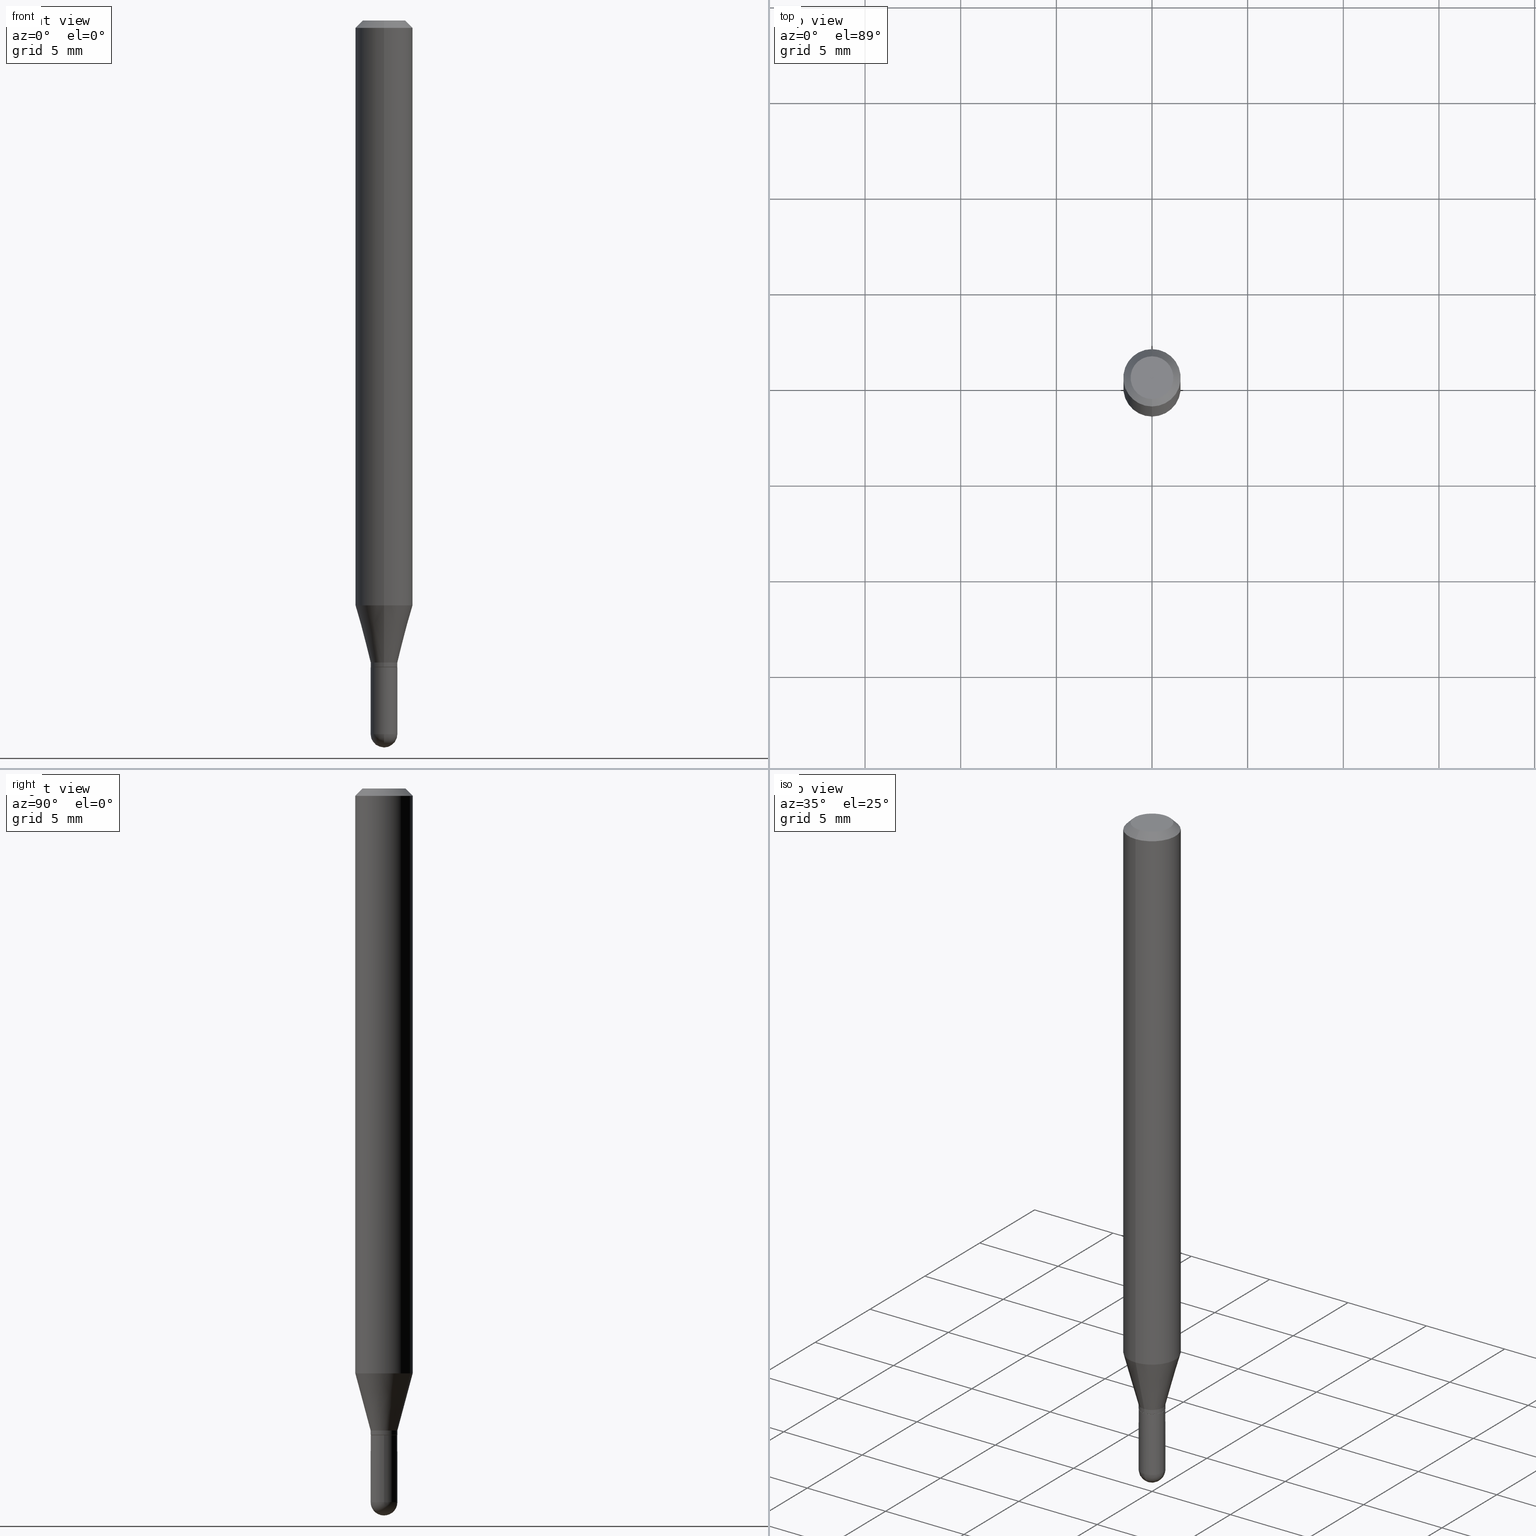
[diagram: canonical four-view strip — front | top / right | iso, engineering-drawing reading convention]
A machine part, canonical four-view strip (front | top / right | iso — engineering-drawing reading convention). The complete STEP part file that produces these views, byte-faithful:
ISO-10303-21;
HEADER;
FILE_DESCRIPTION (( 'STEP AP203' ),
    '1' );
FILE_NAME ('02943.STEP',
    '2024-03-07T21:55:42',
    ( '' ),
    ( '' ),
    'SwSTEP 2.0',
    'SolidWorks 2023',
    '' );
FILE_SCHEMA (( 'CONFIG_CONTROL_DESIGN' ));
ENDSEC;

DATA;
#1 = LINE ( 'NONE', #476, #369 ) ;
#2 = DIRECTION ( 'NONE',  ( -6.982962677686265922E-15, -1.000000000000000000, 3.491568029886026969E-15 ) ) ;
#3 = DIRECTION ( 'NONE',  ( -2.445468806185136597E-29, 3.491481338843145583E-15, 1.000000000000000000 ) ) ;
#4 = CARTESIAN_POINT ( 'NONE',  ( 3.075995059520799729E-16, 0.04404999999999999888, -1.996340688043498133E-16 ) ) ;
#5 = APPROVAL_ROLE ( '' ) ;
#6 = FACE_OUTER_BOUND ( 'NONE', #452, .T. ) ;
#7 = DIRECTION ( 'NONE',  ( -2.445408270153443463E-29, 3.491568029886026969E-15, 1.000000000000000000 ) ) ;
#8 = CONICAL_SURFACE ( 'NONE', #359, 0.02705000000000000113, 0.7853981633974739252 ) ;
#9 = AXIS2_PLACEMENT_3D ( 'NONE', #163, #85, #237 ) ;
#10 = PERSON_AND_ORGANIZATION ( #96, #138 ) ;
#11 = DIRECTION ( 'NONE',  ( -2.445468806185136597E-29, 3.491481338843145583E-15, 1.000000000000000000 ) ) ;
#12 = ORIENTED_EDGE ( 'NONE', *, *, #68, .F. ) ;
#13 = CYLINDRICAL_SURFACE ( 'NONE', #22, 0.02754999999999965810 ) ;
#14 = CARTESIAN_POINT ( 'NONE',  ( 1.922018100231396241E-16, 0.02704999999999535901, -1.330699999999999550 ) ) ;
#15 = VERTEX_POINT ( 'NONE', #325 ) ;
#16 =( NAMED_UNIT ( * ) PLANE_ANGLE_UNIT ( ) SI_UNIT ( $, .RADIAN. ) );
#17 = DIRECTION ( 'NONE',  ( -6.982962677686265922E-15, -1.000000000000000000, 3.491568029886026969E-15 ) ) ;
#18 = DIRECTION ( 'NONE',  ( 1.839019923739603076E-15, 0.2588190451025253469, 0.9659258262890670910 ) ) ;
#19 = ORIENTED_EDGE ( 'NONE', *, *, #303, .T. ) ;
#20 = SECURITY_CLASSIFICATION_LEVEL ( 'unclassified' ) ;
#21 = CIRCLE ( 'NONE', #330, 0.05904999999999999832 ) ;
#22 = AXIS2_PLACEMENT_3D ( 'NONE', #46, #450, #17 ) ;
#23 = AXIS2_PLACEMENT_3D ( 'NONE', #235, #87, #134 ) ;
#24 = ORIENTED_EDGE ( 'NONE', *, *, #511, .F. ) ;
#25 = APPROVAL_ROLE ( '' ) ;
#26 = ORIENTED_EDGE ( 'NONE', *, *, #152, .T. ) ;
#27 = AXIS2_PLACEMENT_3D ( 'NONE', #149, #119, #224 ) ;
#28 = EDGE_CURVE ( 'NONE', #257, #442, #21, .T. ) ;
#29 = EDGE_LOOP ( 'NONE', ( #51, #115, #389, #310 ) ) ;
#30 = APPROVAL ( #499, 'UNSPECIFIED' ) ;
#31 = DIRECTION ( 'NONE',  ( -6.982962677686266711E-15, -1.000000000000000000, 0.000000000000000000 ) ) ;
#32 = ORIENTED_EDGE ( 'NONE', *, *, #247, .F. ) ;
#33 = CYLINDRICAL_SURFACE ( 'NONE', #444, 0.05904999999999999832 ) ;
#34 = CIRCLE ( 'NONE', #88, 0.02755000000000000851 ) ;
#35 = EDGE_LOOP ( 'NONE', ( #327, #180 ) ) ;
#36 = DIRECTION ( 'NONE',  ( 1.000000000000000000, -6.982962677686265922E-15, 4.876176775795935793E-29 ) ) ;
#37 = EDGE_LOOP ( 'NONE', ( #206, #343, #509, #488 ) ) ;
#38 = AXIS2_PLACEMENT_3D ( 'NONE', #486, #446, #492 ) ;
#39 = FACE_OUTER_BOUND ( 'NONE', #52, .T. ) ;
#40 = PRODUCT_DEFINITION ( 'UNKNOWN', '', #360, #75 ) ;
#41 = DIRECTION ( 'NONE',  ( -2.445408270153443463E-29, 3.491568029886026969E-15, 1.000000000000000000 ) ) ;
#42 = DIRECTION ( 'NONE',  ( 2.438088387897960049E-29, -3.491481338843145188E-15, -1.000000000000000000 ) ) ;
#43 = DIRECTION ( 'NONE',  ( -6.982962677686265922E-15, -1.000000000000000000, 0.000000000000000000 ) ) ;
#44 = DIRECTION ( 'NONE',  ( 1.000000000000000000, -6.982962677686254878E-15, 0.000000000000000000 ) ) ;
#45 = PERSON_AND_ORGANIZATION ( #96, #138 ) ;
#46 = CARTESIAN_POINT ( 'NONE',  ( 0.000000000000000000, 0.000000000000000000, 0.000000000000000000 ) ) ;
#47 = AXIS2_PLACEMENT_3D ( 'NONE', #477, #219, #321 ) ;
#48 = CC_DESIGN_APPROVAL ( #460, ( #360 ) ) ;
#49 = APPROVAL_DATE_TIME ( #131, #460 ) ;
#50 = CC_DESIGN_PERSON_AND_ORGANIZATION_ASSIGNMENT ( #295, #177, ( #106 ) ) ;
#51 = ORIENTED_EDGE ( 'NONE', *, *, #508, .F. ) ;
#52 = EDGE_LOOP ( 'NONE', ( #484, #127, #281, #383 ) ) ;
#53 = EDGE_CURVE ( 'NONE', #463, #494, #491, .T. ) ;
#54 = ORIENTED_EDGE ( 'NONE', *, *, #338, .T. ) ;
#55 = EDGE_LOOP ( 'NONE', ( #19, #475, #129, #386 ) ) ;
#56 = VECTOR ( 'NONE', #198, 39.37007874015748143 ) ;
#57 = VECTOR ( 'NONE', #207, 39.37007874015748143 ) ;
#58 = ORIENTED_EDGE ( 'NONE', *, *, #432, .T. ) ;
#59 = CLOSED_SHELL ( 'NONE', ( #300, #172, #86, #148, #187, #505, #500, #352, #150, #328, #114, #136 ) ) ;
#60 = DIRECTION ( 'NONE',  ( -4.851104656540964275E-15, -0.7071067811865500152, -0.7071067811865450192 ) ) ;
#61 = DIRECTION ( 'NONE',  ( 1.000000000000000000, -6.982962677686256455E-15, 0.000000000000000000 ) ) ;
#62 = DIRECTION ( 'NONE',  ( -6.982962677686266711E-15, -1.000000000000000000, 0.000000000000000000 ) ) ;
#63 = AXIS2_PLACEMENT_3D ( 'NONE', #95, #413, #61 ) ;
#64 = CC_DESIGN_DATE_AND_TIME_ASSIGNMENT ( #363, #402, ( #40 ) ) ;
#65 = CC_DESIGN_APPROVAL ( #30, ( #276 ) ) ;
#66 = ADVANCED_FACE ( 'NONE', ( #6 ), #195, .T. ) ;
#67 = CYLINDRICAL_SURFACE ( 'NONE', #322, 0.05904999999999999832 ) ;
#68 = EDGE_CURVE ( 'NONE', #125, #299, #323, .T. ) ;
#69 = CARTESIAN_POINT ( 'NONE',  ( 3.254104785093186315E-29, -4.646229577369334109E-15, -1.330699999999999550 ) ) ;
#70 = VERTEX_POINT ( 'NONE', #435 ) ;
#71 = CARTESIAN_POINT ( 'NONE',  ( 3.591293215323181808E-29, -5.127414920158100475E-15, -1.468549999999999800 ) ) ;
#72 = ADVANCED_FACE ( 'NONE', ( #83 ), #234, .F. ) ;
#73 = AXIS2_PLACEMENT_3D ( 'NONE', #361, #11, #447 ) ;
#74 = EDGE_CURVE ( 'NONE', #299, #448, #466, .T. ) ;
#75 = DESIGN_CONTEXT ( 'detailed design', #493, 'design' ) ;
#76 = CARTESIAN_POINT ( 'NONE',  ( 3.588937232196492421E-29, -5.130788822089751023E-15, -1.468549999999999800 ) ) ;
#77 = DIRECTION ( 'NONE',  ( -2.445408270153443463E-29, 3.491568029886026969E-15, 1.000000000000000000 ) ) ;
#78 = CARTESIAN_POINT ( 'NONE',  ( 0.000000000000000000, 0.000000000000000000, 0.000000000000000000 ) ) ;
#79 = CC_DESIGN_PERSON_AND_ORGANIZATION_ASSIGNMENT ( #169, #232, ( #276 ) ) ;
#80 = AXIS2_PLACEMENT_3D ( 'NONE', #196, #7, #273 ) ;
#81 = CIRCLE ( 'NONE', #73, 0.02755000000000000851 ) ;
#82 = PERSON_AND_ORGANIZATION ( #96, #138 ) ;
#83 = FACE_OUTER_BOUND ( 'NONE', #35, .T. ) ;
#84 = CARTESIAN_POINT ( 'NONE',  ( 3.668112405230187738E-31, -5.237352044829072796E-17, -0.01500000000000009139 ) ) ;
#85 = DIRECTION ( 'NONE',  ( -2.445408270153443463E-29, 3.491568029886026969E-15, 1.000000000000000000 ) ) ;
#86 = ADVANCED_FACE ( 'NONE', ( #440 ), #120, .T. ) ;
#87 = DIRECTION ( 'NONE',  ( -2.445408270153443463E-29, 3.491568029886026969E-15, 1.000000000000000000 ) ) ;
#88 = AXIS2_PLACEMENT_3D ( 'NONE', #71, #349, #112 ) ;
#89 = ORIENTED_EDGE ( 'NONE', *, *, #395, .T. ) ;
#90 = CARTESIAN_POINT ( 'NONE',  ( -1.923806217702209492E-16, -0.02755000000000515370, -1.468549999999999800 ) ) ;
#91 = ORIENTED_EDGE ( 'NONE', *, *, #124, .T. ) ;
#92 = PERSON_AND_ORGANIZATION_ROLE ( 'creator' ) ;
#93 = DIRECTION ( 'NONE',  ( -6.982962677686265922E-15, -1.000000000000000000, 3.491568029886026969E-15 ) ) ;
#94 = ORIENTED_EDGE ( 'NONE', *, *, #239, .F. ) ;
#95 = CARTESIAN_POINT ( 'NONE',  ( 3.254185340390560677E-29, -4.646114217598572614E-15, -1.330699999999999772 ) ) ;
#96 = PERSON ( 'UNSPECIFIED', 'UNSPECIFIED', 'UNSPECIFIED', ('UNSPECIFIED'), ('UNSPECIFIED'), ('UNSPECIFIED') ) ;
#97 = ORIENTED_EDGE ( 'NONE', *, *, #283, .T. ) ;
#98 = APPROVAL_STATUS ( 'not_yet_approved' ) ;
#99 = EDGE_CURVE ( 'NONE', #378, #289, #433, .T. ) ;
#100 = CARTESIAN_POINT ( 'NONE',  ( -4.123439461173739834E-16, -0.05904999999999999832, 2.061770921647698955E-16 ) ) ;
#101 = CIRCLE ( 'NONE', #458, 0.02754999999999965810 ) ;
#102 = EDGE_CURVE ( 'NONE', #463, #441, #304, .T. ) ;
#103 = DIRECTION ( 'NONE',  ( -2.445408270153443463E-29, 3.491568029886026969E-15, 1.000000000000000000 ) ) ;
#104 = DIRECTION ( 'NONE',  ( -2.445468806185136597E-29, 3.491481338843145583E-15, 1.000000000000000000 ) ) ;
#105 = ORIENTED_EDGE ( 'NONE', *, *, #416, .F. ) ;
#106 = PRODUCT ( '02943', '02943', '', ( #377 ) ) ;
#107 = FACE_OUTER_BOUND ( 'NONE', #55, .T. ) ;
#108 = ORIENTED_EDGE ( 'NONE', *, *, #341, .T. ) ;
#109 = LINE ( 'NONE', #264, #286 ) ;
#110 = VERTEX_POINT ( 'NONE', #501 ) ;
#111 = ORIENTED_EDGE ( 'NONE', *, *, #247, .T. ) ;
#112 = DIRECTION ( 'NONE',  ( 1.000000000000000000, -6.982962677686254878E-15, 0.000000000000000000 ) ) ;
#113 = VECTOR ( 'NONE', #320, 39.37007874015748143 ) ;
#114 = ADVANCED_FACE ( 'NONE', ( #512 ), #368, .T. ) ;
#115 = ORIENTED_EDGE ( 'NONE', *, *, #28, .T. ) ;
#116 = DIRECTION ( 'NONE',  ( -4.937700262164674260E-15, -0.7071067811865632269, 0.7071067811865319186 ) ) ;
#117 = DIRECTION ( 'NONE',  ( -2.445468806185136597E-29, 3.491481338843145583E-15, 1.000000000000000000 ) ) ;
#118 = CC_DESIGN_DATE_AND_TIME_ASSIGNMENT ( #496, #336, ( #276 ) ) ;
#119 = DIRECTION ( 'NONE',  ( -2.445408270153443463E-29, 3.491568029886026969E-15, 1.000000000000000000 ) ) ;
#120 = CONICAL_SURFACE ( 'NONE', #184, 0.05904999999999999832, 0.7853981633974483900 ) ;
#121 = AXIS2_PLACEMENT_3D ( 'NONE', #215, #103, #259 ) ;
#122 = DIRECTION ( 'NONE',  ( -2.445408270153443743E-29, 3.491568029886026969E-15, 1.000000000000000000 ) ) ;
#123 = DIRECTION ( 'NONE',  ( 1.000000000000000000, -6.982962677686256455E-15, 0.000000000000000000 ) ) ;
#124 = EDGE_CURVE ( 'NONE', #125, #289, #208, .T. ) ;
#125 = VERTEX_POINT ( 'NONE', #439 ) ;
#126 = PLANE ( 'NONE',  #178 ) ;
#127 = ORIENTED_EDGE ( 'NONE', *, *, #239, .T. ) ;
#128 = ORIENTED_EDGE ( 'NONE', *, *, #258, .F. ) ;
#129 = ORIENTED_EDGE ( 'NONE', *, *, #400, .F. ) ;
#130 = CC_DESIGN_SECURITY_CLASSIFICATION ( #276, ( #360 ) ) ;
#131 = DATE_AND_TIME ( #365, #504 ) ;
#132 = CARTESIAN_POINT ( 'NONE',  ( 2.943147646551666827E-29, -4.202243181785466400E-15, -1.203540399561579655 ) ) ;
#133 = FACE_OUTER_BOUND ( 'NONE', #309, .T. ) ;
#134 = DIRECTION ( 'NONE',  ( -6.982962677686265133E-15, -1.000000000000000000, 3.491568029886026969E-15 ) ) ;
#135 = ORIENTED_EDGE ( 'NONE', *, *, #316, .T. ) ;
#136 = ADVANCED_FACE ( 'NONE', ( #350 ), #315, .T. ) ;
#137 = CARTESIAN_POINT ( 'NONE',  ( 0.000000000000000000, 0.000000000000000000, 0.000000000000000000 ) ) ;
#138 = ORGANIZATION ( 'UNSPECIFIED', 'UNSPECIFIED', '' ) ;
#139 = ORIENTED_EDGE ( 'NONE', *, *, #429, .F. ) ;
#140 = PERSON_AND_ORGANIZATION ( #96, #138 ) ;
#141 = DIRECTION ( 'NONE',  ( 1.000000000000000000, -6.982962677686266711E-15, 4.883557194083112901E-29 ) ) ;
#142 = AXIS2_PLACEMENT_3D ( 'NONE', #381, #506, #183 ) ;
#143 = DIRECTION ( 'NONE',  ( -6.982962677686265922E-15, -1.000000000000000000, 0.000000000000000000 ) ) ;
#144 = EDGE_LOOP ( 'NONE', ( #379, #182, #372, #24 ) ) ;
#145 = CARTESIAN_POINT ( 'NONE',  ( 1.939781668625386436E-16, 0.02704999999999535901, -1.330699999999999550 ) ) ;
#146 = ORIENTED_EDGE ( 'NONE', *, *, #334, .F. ) ;
#147 = VERTEX_POINT ( 'NONE', #194 ) ;
#148 = ADVANCED_FACE ( 'NONE', ( #423 ), #67, .T. ) ;
#149 = CARTESIAN_POINT ( 'NONE',  ( 3.254104785093186315E-29, -4.646229577369334109E-15, -1.330699999999999550 ) ) ;
#150 = ADVANCED_FACE ( 'NONE', ( #464 ), #355, .F. ) ;
#151 = DIRECTION ( 'NONE',  ( -6.982962677686266711E-15, -1.000000000000000000, 0.000000000000000000 ) ) ;
#152 = EDGE_CURVE ( 'NONE', #70, #125, #403, .T. ) ;
#153 = CARTESIAN_POINT ( 'NONE',  ( -1.923806217702223543E-16, -0.02755000000000439042, -1.330199999999999827 ) ) ;
#154 = CARTESIAN_POINT ( 'NONE',  ( -1.888891404313809742E-16, -0.02705000000000464672, -1.330699999999999550 ) ) ;
#155 = DIRECTION ( 'NONE',  ( 1.000000000000000000, -6.982962677686265922E-15, 4.876176775795935793E-29 ) ) ;
#156 = CARTESIAN_POINT ( 'NONE',  ( -1.923806217702219352E-16, -0.02755000000000427246, -1.321099999999999941 ) ) ;
#157 = CARTESIAN_POINT ( 'NONE',  ( 3.591293215323181808E-29, -5.127414920158100475E-15, -1.468549999999999800 ) ) ;
#158 = CARTESIAN_POINT ( 'NONE',  ( 3.254185340390560677E-29, -4.646114217598572614E-15, -1.330699999999999772 ) ) ;
#159 = AXIS2_PLACEMENT_3D ( 'NONE', #318, #77, #227 ) ;
#160 = CARTESIAN_POINT ( 'NONE',  ( 0.000000000000000000, 0.000000000000000000, 0.000000000000000000 ) ) ;
#161 = DIRECTION ( 'NONE',  ( -6.982962677686265922E-15, -1.000000000000000000, 0.000000000000000000 ) ) ;
#162 = ORIENTED_EDGE ( 'NONE', *, *, #253, .F. ) ;
#163 = CARTESIAN_POINT ( 'NONE',  ( 2.241485532078428435E-45, -3.200405968515854961E-31, -9.166099417574067524E-17 ) ) ;
#164 = VERTEX_POINT ( 'NONE', #154 ) ;
#165 = CARTESIAN_POINT ( 'NONE',  ( 4.195754854663683357E-16, 0.05904999999999576560, -1.203540399561579877 ) ) ;
#166 = CIRCLE ( 'NONE', #426, 0.02754999999999965463 ) ;
#167 = CC_DESIGN_PERSON_AND_ORGANIZATION_ASSIGNMENT ( #10, #92, ( #360 ) ) ;
#168 = ORIENTED_EDGE ( 'NONE', *, *, #226, .T. ) ;
#169 = PERSON_AND_ORGANIZATION ( #96, #138 ) ;
#170 = DIRECTION ( 'NONE',  ( -6.982962677686265922E-15, -1.000000000000000000, 4.626330217890369336E-15 ) ) ;
#171 = SHAPE_DEFINITION_REPRESENTATION ( #270, #233 ) ;
#172 = ADVANCED_FACE ( 'NONE', ( #396 ), #8, .T. ) ;
#173 = CARTESIAN_POINT ( 'NONE',  ( 3.230628865699713761E-29, -4.612710524282430693E-15, -1.321099999999999941 ) ) ;
#174 = CARTESIAN_POINT ( 'NONE',  ( -4.051124067684085231E-16, -0.05905000000000005383, -0.01499999999999988495 ) ) ;
#175 = CALENDAR_DATE ( 2024, 7, 3 ) ;
#176 = CONICAL_SURFACE ( 'NONE', #159, 0.02754999999999965810, 0.2617993877991506846 ) ;
#177 = PERSON_AND_ORGANIZATION_ROLE ( 'design_owner' ) ;
#178 = AXIS2_PLACEMENT_3D ( 'NONE', #406, #291, #93 ) ;
#179 = DIRECTION ( 'NONE',  ( 2.445408270153443463E-29, -3.491568029886026969E-15, -1.000000000000000000 ) ) ;
#180 = ORIENTED_EDGE ( 'NONE', *, *, #74, .T. ) ;
#181 = LINE ( 'NONE', #100, #472 ) ;
#182 = ORIENTED_EDGE ( 'NONE', *, *, #102, .T. ) ;
#183 = DIRECTION ( 'NONE',  ( -6.982962677686265922E-15, -1.000000000000000000, 0.000000000000000000 ) ) ;
#184 = AXIS2_PLACEMENT_3D ( 'NONE', #84, #333, #374 ) ;
#185 = AXIS2_PLACEMENT_3D ( 'NONE', #478, #437, #62 ) ;
#186 = DIRECTION ( 'NONE',  ( -6.982962677686265922E-15, -1.000000000000000000, 3.491568029886026969E-15 ) ) ;
#187 = ADVANCED_FACE ( 'NONE', ( #39 ), #176, .T. ) ;
#188 = DIRECTION ( 'NONE',  ( -2.445408270153443743E-29, 3.491568029886026969E-15, 1.000000000000000000 ) ) ;
#189 = CARTESIAN_POINT ( 'NONE',  ( -1.888891404313809742E-16, -0.02705000000000464672, -1.330699999999999550 ) ) ;
#190 = CC_DESIGN_PERSON_AND_ORGANIZATION_ASSIGNMENT ( #45, #397, ( #40 ) ) ;
#191 = DIRECTION ( 'NONE',  ( -6.982962677686266711E-15, -1.000000000000000000, 0.000000000000000000 ) ) ;
#192 = DIRECTION ( 'NONE',  ( 4.937700262164548042E-15, 0.7071067811865451302, -0.7071067811865499042 ) ) ;
#193 = VECTOR ( 'NONE', #60, 39.37007874015748143 ) ;
#194 = CARTESIAN_POINT ( 'NONE',  ( 3.599717260347271507E-16, 0.04404999999999999888, -2.454645658922201879E-16 ) ) ;
#195 = CYLINDRICAL_SURFACE ( 'NONE', #436, 0.02755000000000000851 ) ;
#196 = CARTESIAN_POINT ( 'NONE',  ( 3.252882080958110635E-29, -4.644483793354392167E-15, -1.330199999999999827 ) ) ;
#197 = APPROVAL_DATE_TIME ( #489, #244 ) ;
#198 = DIRECTION ( 'NONE',  ( -2.445408270153443743E-29, 3.491568029886026969E-15, 1.000000000000000000 ) ) ;
#199 = DIRECTION ( 'NONE',  ( -1.000000000000000000, 6.982962677686265922E-15, -4.883557194083112340E-29 ) ) ;
#200 = COORDINATED_UNIVERSAL_TIME_OFFSET ( 5, 0, .BEHIND. ) ;
#201 = DIRECTION ( 'NONE',  ( -2.445408270153443463E-29, 3.491568029886026969E-15, 1.000000000000000000 ) ) ;
#202 = AXIS2_PLACEMENT_3D ( 'NONE', #173, #390, #143 ) ;
#203 = ORIENTED_EDGE ( 'NONE', *, *, #124, .F. ) ;
#204 = EDGE_CURVE ( 'NONE', #378, #70, #266, .T. ) ;
#205 = DIRECTION ( 'NONE',  ( -6.982962677686266711E-15, -1.000000000000000000, 0.000000000000000000 ) ) ;
#206 = ORIENTED_EDGE ( 'NONE', *, *, #99, .F. ) ;
#207 = DIRECTION ( 'NONE',  ( -2.445468806185136877E-29, 3.491481338843145188E-15, 1.000000000000000000 ) ) ;
#208 = CIRCLE ( 'NONE', #503, 0.02755000000000000851 ) ;
#209 = CC_DESIGN_APPROVAL ( #244, ( #40 ) ) ;
#210 = EDGE_LOOP ( 'NONE', ( #94, #410, #54, #293 ) ) ;
#211 = AXIS2_PLACEMENT_3D ( 'NONE', #398, #42, #356 ) ;
#212 = COORDINATED_UNIVERSAL_TIME_OFFSET ( 5, 0, .BEHIND. ) ;
#213 = APPLICATION_CONTEXT ( 'configuration controlled 3d designs of mechanical parts and assemblies' ) ;
#214 = EDGE_CURVE ( 'NONE', #442, #110, #181, .T. ) ;
#215 = CARTESIAN_POINT ( 'NONE',  ( 3.668112405230187738E-31, -5.237352044829072796E-17, -0.01500000000000009139 ) ) ;
#216 = CIRCLE ( 'NONE', #38, 0.05904999999999999832 ) ;
#217 = APPLICATION_PROTOCOL_DEFINITION ( 'international standard', 'config_control_design', 1994, #213 ) ;
#218 = ORIENTED_EDGE ( 'NONE', *, *, #204, .F. ) ;
#219 = DIRECTION ( 'NONE',  ( 1.000000000000000000, -7.105427357601001070E-15, 4.926315508542082329E-29 ) ) ;
#220 = DIRECTION ( 'NONE',  ( -2.445408270153443463E-29, 3.491568029886026969E-15, 1.000000000000000000 ) ) ;
#221 = CYLINDRICAL_SURFACE ( 'NONE', #313, 0.02755000000000000851 ) ;
#222 = ADVANCED_FACE ( 'NONE', ( #277 ), #256, .T. ) ;
#223 = LOCAL_TIME ( 16, 55, 42.00000000000000000, #274 ) ;
#224 = DIRECTION ( 'NONE',  ( -6.982962677686266711E-15, -1.000000000000000000, 0.000000000000000000 ) ) ;
#225 = CARTESIAN_POINT ( 'NONE',  ( 0.000000000000000000, 0.000000000000000000, 0.000000000000000000 ) ) ;
#226 = EDGE_CURVE ( 'NONE', #147, #427, #467, .T. ) ;
#227 = DIRECTION ( 'NONE',  ( -6.982962677686265922E-15, -1.000000000000000000, 0.000000000000000000 ) ) ;
#228 = AXIS2_PLACEMENT_3D ( 'NONE', #158, #401, #123 ) ;
#229 = DIRECTION ( 'NONE',  ( -6.982962677686265922E-15, -1.000000000000000000, 4.626330217890369336E-15 ) ) ;
#230 = AXIS2_PLACEMENT_3D ( 'NONE', #137, #301, #296 ) ;
#231 = VECTOR ( 'NONE', #275, 39.37007874015748143 ) ;
#232 = PERSON_AND_ORGANIZATION_ROLE ( 'classification_officer' ) ;
#233 = ADVANCED_BREP_SHAPE_REPRESENTATION ( '02943', ( #461, #459, #230 ), #497 ) ;
#234 = PLANE ( 'NONE',  #211 ) ;
#235 = CARTESIAN_POINT ( 'NONE',  ( 2.241485532078428435E-45, -3.200405968515854961E-31, -9.166099417574067524E-17 ) ) ;
#236 = APPROVAL_ROLE ( '' ) ;
#237 = DIRECTION ( 'NONE',  ( -6.982962677686265133E-15, -1.000000000000000000, 3.491568029886026969E-15 ) ) ;
#238 = COORDINATED_UNIVERSAL_TIME_OFFSET ( 5, 0, .BEHIND. ) ;
#239 = EDGE_CURVE ( 'NONE', #494, #257, #454, .T. ) ;
#240 = DIRECTION ( 'NONE',  ( -2.445408270153443463E-29, 3.491568029886026969E-15, 1.000000000000000000 ) ) ;
#241 = AXIS2_PLACEMENT_3D ( 'NONE', #342, #141, #205 ) ;
#242 = CIRCLE ( 'NONE', #202, 0.02754999999999965810 ) ;
#243 = ORIENTED_EDGE ( 'NONE', *, *, #432, .F. ) ;
#244 = APPROVAL ( #98, 'UNSPECIFIED' ) ;
#245 = ORIENTED_EDGE ( 'NONE', *, *, #508, .T. ) ;
#246 = PERSON_AND_ORGANIZATION ( #96, #138 ) ;
#247 = EDGE_CURVE ( 'NONE', #465, #463, #371, .T. ) ;
#248 = LINE ( 'NONE', #409, #57 ) ;
#249 = EDGE_LOOP ( 'NONE', ( #128, #89, #424, #243 ) ) ;
#250 = AXIS2_PLACEMENT_3D ( 'NONE', #261, #380, #358 ) ;
#251 = VECTOR ( 'NONE', #351, 39.37007874015748143 ) ;
#252 = ORIENTED_EDGE ( 'NONE', *, *, #74, .F. ) ;
#253 = EDGE_CURVE ( 'NONE', #448, #299, #297, .T. ) ;
#254 = ORIENTED_EDGE ( 'NONE', *, *, #395, .F. ) ;
#255 = AXIS2_PLACEMENT_3D ( 'NONE', #76, #431, #314 ) ;
#256 = SPHERICAL_SURFACE ( 'NONE', #241, 0.02755000000000005014 ) ;
#257 = VERTEX_POINT ( 'NONE', #165 ) ;
#258 = EDGE_CURVE ( 'NONE', #427, #147, #412, .T. ) ;
#259 = DIRECTION ( 'NONE',  ( -6.982962677686265922E-15, -1.000000000000000000, 3.505890868245046092E-15 ) ) ;
#260 = EDGE_LOOP ( 'NONE', ( #218, #502, #203, #408 ) ) ;
#261 = CARTESIAN_POINT ( 'NONE',  ( 0.000000000000000000, 0.000000000000000000, 0.000000000000000000 ) ) ;
#262 = EDGE_LOOP ( 'NONE', ( #254, #498, #58, #135 ) ) ;
#263 = CARTESIAN_POINT ( 'NONE',  ( 1.957545237019369481E-16, 0.02754999999999491536, -1.330199999999999827 ) ) ;
#264 = CARTESIAN_POINT ( 'NONE',  ( 4.195754854663390985E-16, 0.05904999999999999832, -2.061770921647698955E-16 ) ) ;
#265 = VERTEX_POINT ( 'NONE', #288 ) ;
#266 = CIRCLE ( 'NONE', #47, 0.02755000000000005014 ) ;
#267 = APPROVAL_PERSON_ORGANIZATION ( #246, #460, #5 ) ;
#268 = CARTESIAN_POINT ( 'NONE',  ( 0.02755000000000000157, -4.838494839368829407E-15, -1.330699999999999772 ) ) ;
#269 = CARTESIAN_POINT ( 'NONE',  ( -3.536586717851222218E-16, -0.04404999999999999888, 6.214257754073881279E-17 ) ) ;
#270 = PRODUCT_DEFINITION_SHAPE ( 'NONE', 'NONE',  #40 ) ;
#271 = DIRECTION ( 'NONE',  ( 1.000000000000000000, -6.982962677686254878E-15, 0.000000000000000000 ) ) ;
#272 = DIRECTION ( 'NONE',  ( -2.445468806185136597E-29, 3.491481338843145583E-15, 1.000000000000000000 ) ) ;
#273 = DIRECTION ( 'NONE',  ( -6.982962677686265922E-15, -1.000000000000000000, 0.000000000000000000 ) ) ;
#274 = COORDINATED_UNIVERSAL_TIME_OFFSET ( 5, 0, .BEHIND. ) ;
#275 = DIRECTION ( 'NONE',  ( -2.445468806185136877E-29, 3.491481338843145188E-15, 1.000000000000000000 ) ) ;
#276 = SECURITY_CLASSIFICATION ( '', '', #20 ) ;
#277 = FACE_OUTER_BOUND ( 'NONE', #260, .T. ) ;
#278 = CALENDAR_DATE ( 2024, 7, 3 ) ;
#279 = ORIENTED_EDGE ( 'NONE', *, *, #102, .F. ) ;
#280 = ORIENTED_EDGE ( 'NONE', *, *, #258, .T. ) ;
#281 = ORIENTED_EDGE ( 'NONE', *, *, #392, .F. ) ;
#282 =( LENGTH_UNIT ( ) NAMED_UNIT ( * ) SI_UNIT ( $, .METRE. ) );
#283 = EDGE_CURVE ( 'NONE', #289, #15, #81, .T. ) ;
#284 = EDGE_LOOP ( 'NONE', ( #32, #487, #405, #279 ) ) ;
#285 = LENGTH_MEASURE_WITH_UNIT ( LENGTH_MEASURE( 0.02539999999999999897 ), #282 );
#286 = VECTOR ( 'NONE', #188, 39.37007874015748143 ) ;
#287 = CARTESIAN_POINT ( 'NONE',  ( 3.252882080958110635E-29, -4.644483793354392167E-15, -1.330199999999999827 ) ) ;
#288 = CARTESIAN_POINT ( 'NONE',  ( 4.195754854663686808E-16, 0.05904999999999994975, -0.01500000000000029955 ) ) ;
#289 = VERTEX_POINT ( 'NONE', #90 ) ;
#290 = CARTESIAN_POINT ( 'NONE',  ( 1.957545237019051472E-16, 0.02754999999999965810, -9.619269922335884417E-17 ) ) ;
#291 = DIRECTION ( 'NONE',  ( -2.445408270153443183E-29, 3.491568029886026969E-15, 1.000000000000000000 ) ) ;
#292 = CARTESIAN_POINT ( 'NONE',  ( 1.957545237019374412E-16, 0.02754999999999504373, -1.321099999999999941 ) ) ;
#293 = ORIENTED_EDGE ( 'NONE', *, *, #28, .F. ) ;
#294 = CALENDAR_DATE ( 2024, 7, 3 ) ;
#295 = PERSON_AND_ORGANIZATION ( #96, #138 ) ;
#296 = DIRECTION ( 'NONE',  ( 1.000000000000000000, 0.000000000000000000, 0.000000000000000000 ) ) ;
#297 = CIRCLE ( 'NONE', #63, 0.02755000000000000157 ) ;
#298 = EDGE_LOOP ( 'NONE', ( #366, #245, #417, #329 ) ) ;
#299 = VERTEX_POINT ( 'NONE', #451 ) ;
#300 = ADVANCED_FACE ( 'NONE', ( #107 ), #13, .T. ) ;
#301 = DIRECTION ( 'NONE',  ( 0.000000000000000000, 0.000000000000000000, 1.000000000000000000 ) ) ;
#302 = CARTESIAN_POINT ( 'NONE',  ( 3.668112405230187738E-31, -5.237352044829072796E-17, -0.01500000000000009139 ) ) ;
#303 = EDGE_CURVE ( 'NONE', #441, #463, #166, .T. ) ;
#304 = CIRCLE ( 'NONE', #80, 0.02754999999999965463 ) ;
#305 = CIRCLE ( 'NONE', #312, 0.05904999999999999832 ) ;
#306 = CARTESIAN_POINT ( 'NONE',  ( 3.254104785093186315E-29, -4.646229577369334109E-15, -1.330699999999999550 ) ) ;
#307 = VECTOR ( 'NONE', #18, 39.37007874015748143 ) ;
#308 = CARTESIAN_POINT ( 'NONE',  ( 3.076650045841530487E-16, 0.02754999999999504373, -1.321099999999999941 ) ) ;
#309 = EDGE_LOOP ( 'NONE', ( #415, #139 ) ) ;
#310 = ORIENTED_EDGE ( 'NONE', *, *, #316, .F. ) ;
#311 = VERTEX_POINT ( 'NONE', #326 ) ;
#312 = AXIS2_PLACEMENT_3D ( 'NONE', #422, #220, #170 ) ;
#313 = AXIS2_PLACEMENT_3D ( 'NONE', #225, #272, #36 ) ;
#314 = DIRECTION ( 'NONE',  ( -6.982962677686266711E-15, -1.000000000000000000, 0.000000000000000000 ) ) ;
#315 = CYLINDRICAL_SURFACE ( 'NONE', #250, 0.02754999999999965810 ) ;
#316 = EDGE_CURVE ( 'NONE', #265, #110, #216, .T. ) ;
#317 = CARTESIAN_POINT ( 'NONE',  ( -1.923806217702542292E-16, -0.02754999999999965810, 9.619269922335884417E-17 ) ) ;
#318 = CARTESIAN_POINT ( 'NONE',  ( 3.230628865699713761E-29, -4.612710524282430693E-15, -1.321099999999999941 ) ) ;
#319 = CARTESIAN_POINT ( 'NONE',  ( -0.02755000000000000851, 1.957545237019076617E-16, -1.355166617365226740E-30 ) ) ;
#320 = DIRECTION ( 'NONE',  ( -1.807323732225332900E-15, -0.2588190451025185745, 0.9659258262890689783 ) ) ;
#321 = DIRECTION ( 'NONE',  ( 7.105427357601001070E-15, 1.000000000000000000, 0.000000000000000000 ) ) ;
#322 = AXIS2_PLACEMENT_3D ( 'NONE', #160, #479, #2 ) ;
#323 = LINE ( 'NONE', #319, #231 ) ;
#324 = DIRECTION ( 'NONE',  ( -2.445408270153443463E-29, 3.491568029886026969E-15, 1.000000000000000000 ) ) ;
#325 = CARTESIAN_POINT ( 'NONE',  ( 0.02755000000000000851, -5.079145190648592548E-15, -1.468549999999999800 ) ) ;
#326 = CARTESIAN_POINT ( 'NONE',  ( -1.923806217702219352E-16, -0.02755000000000427246, -1.321099999999999941 ) ) ;
#327 = ORIENTED_EDGE ( 'NONE', *, *, #253, .T. ) ;
#328 = ADVANCED_FACE ( 'NONE', ( #133 ), #126, .F. ) ;
#329 = ORIENTED_EDGE ( 'NONE', *, *, #214, .F. ) ;
#330 = AXIS2_PLACEMENT_3D ( 'NONE', #132, #240, #229 ) ;
#331 = VECTOR ( 'NONE', #407, 39.37007874015748143 ) ;
#332 = ORIENTED_EDGE ( 'NONE', *, *, #303, .F. ) ;
#333 = DIRECTION ( 'NONE',  ( 2.445408270153443463E-29, -3.491568029886026969E-15, -1.000000000000000000 ) ) ;
#334 = EDGE_CURVE ( 'NONE', #15, #448, #248, .T. ) ;
#335 = LOCAL_TIME ( 16, 55, 42.00000000000000000, #373 ) ;
#336 = DATE_TIME_ROLE ( 'classification_date' ) ;
#337 = FACE_OUTER_BOUND ( 'NONE', #262, .T. ) ;
#338 = EDGE_CURVE ( 'NONE', #311, #442, #370, .T. ) ;
#339 = CARTESIAN_POINT ( 'NONE',  ( 3.655131906243548589E-29, -5.228666083940705482E-15, -1.496099999999999985 ) ) ;
#340 = ORIENTED_EDGE ( 'NONE', *, *, #419, .T. ) ;
#341 = EDGE_CURVE ( 'NONE', #164, #465, #404, .T. ) ;
#342 = CARTESIAN_POINT ( 'NONE',  ( 3.588937232196492421E-29, -5.130788822089751023E-15, -1.468549999999999800 ) ) ;
#343 = ORIENTED_EDGE ( 'NONE', *, *, #204, .T. ) ;
#344 = AXIS2_PLACEMENT_3D ( 'NONE', #157, #117, #271 ) ;
#345 = CIRCLE ( 'NONE', #121, 0.05904999999999999832 ) ;
#346 = APPROVAL_PERSON_ORGANIZATION ( #455, #30, #25 ) ;
#347 = CC_DESIGN_PERSON_AND_ORGANIZATION_ASSIGNMENT ( #82, #485, ( #360 ) ) ;
#348 = FACE_OUTER_BOUND ( 'NONE', #210, .T. ) ;
#349 = DIRECTION ( 'NONE',  ( -2.445468806185136597E-29, 3.491481338843145583E-15, 1.000000000000000000 ) ) ;
#350 = FACE_OUTER_BOUND ( 'NONE', #144, .T. ) ;
#351 = DIRECTION ( 'NONE',  ( -2.445408270153443743E-29, 3.491568029886026969E-15, 1.000000000000000000 ) ) ;
#352 = ADVANCED_FACE ( 'NONE', ( #337 ), #481, .T. ) ;
#353 = DIRECTION ( 'NONE',  ( 2.445408270153443183E-29, -3.491568029886026969E-15, -1.000000000000000000 ) ) ;
#354 = CARTESIAN_POINT ( 'NONE',  ( 0.000000000000000000, 0.000000000000000000, 0.000000000000000000 ) ) ;
#355 = PLANE ( 'NONE',  #385 ) ;
#356 = DIRECTION ( 'NONE',  ( -1.000000000000000000, 6.982962677686265922E-15, -4.876176775795935793E-29 ) ) ;
#357 = DIMENSIONAL_EXPONENTS ( 1.000000000000000000, 0.000000000000000000, 0.000000000000000000, 0.000000000000000000, 0.000000000000000000, 0.000000000000000000, 0.000000000000000000 ) ;
#358 = DIRECTION ( 'NONE',  ( -6.982962677686265922E-15, -1.000000000000000000, 3.491568029886026969E-15 ) ) ;
#359 = AXIS2_PLACEMENT_3D ( 'NONE', #69, #41, #31 ) ;
#360 = PRODUCT_DEFINITION_FORMATION_WITH_SPECIFIED_SOURCE ( 'ANY', '', #106, .NOT_KNOWN. ) ;
#361 = CARTESIAN_POINT ( 'NONE',  ( 3.591293215323181808E-29, -5.127414920158100475E-15, -1.468549999999999800 ) ) ;
#362 = ORIENTED_EDGE ( 'NONE', *, *, #334, .T. ) ;
#363 = DATE_AND_TIME ( #367, #223 ) ;
#364 = EDGE_LOOP ( 'NONE', ( #26, #482, #162, #146, #340 ) ) ;
#365 = CALENDAR_DATE ( 2024, 7, 3 ) ;
#366 = ORIENTED_EDGE ( 'NONE', *, *, #392, .T. ) ;
#367 = CALENDAR_DATE ( 2024, 7, 3 ) ;
#368 = CONICAL_SURFACE ( 'NONE', #457, 0.02705000000000000113, 0.7853981633974739252 ) ;
#369 = VECTOR ( 'NONE', #192, 39.37007874015748143 ) ;
#370 = LINE ( 'NONE', #156, #113 ) ;
#371 = LINE ( 'NONE', #14, #331 ) ;
#372 = ORIENTED_EDGE ( 'NONE', *, *, #414, .T. ) ;
#373 = COORDINATED_UNIVERSAL_TIME_OFFSET ( 5, 0, .BEHIND. ) ;
#374 = DIRECTION ( 'NONE',  ( 6.982962677686265922E-15, 1.000000000000000000, -3.505890868245046092E-15 ) ) ;
#375 = VECTOR ( 'NONE', #116, 39.37007874015748143 ) ;
#376 = LOCAL_TIME ( 16, 55, 42.00000000000000000, #212 ) ;
#377 = MECHANICAL_CONTEXT ( 'NONE', #213, 'mechanical' ) ;
#378 = VERTEX_POINT ( 'NONE', #339 ) ;
#379 = ORIENTED_EDGE ( 'NONE', *, *, #53, .F. ) ;
#380 = DIRECTION ( 'NONE',  ( -2.445408270153443463E-29, 3.491568029886026969E-15, 1.000000000000000000 ) ) ;
#381 = CARTESIAN_POINT ( 'NONE',  ( 3.230628865699713761E-29, -4.612710524282430693E-15, -1.321099999999999941 ) ) ;
#382 = FACE_OUTER_BOUND ( 'NONE', #29, .T. ) ;
#383 = ORIENTED_EDGE ( 'NONE', *, *, #338, .F. ) ;
#384 = EDGE_LOOP ( 'NONE', ( #168, #280 ) ) ;
#385 = AXIS2_PLACEMENT_3D ( 'NONE', #4, #353, #474 ) ;
#386 = ORIENTED_EDGE ( 'NONE', *, *, #414, .F. ) ;
#387 = FACE_OUTER_BOUND ( 'NONE', #37, .T. ) ;
#388 = EDGE_CURVE ( 'NONE', #110, #265, #345, .T. ) ;
#389 = ORIENTED_EDGE ( 'NONE', *, *, #214, .T. ) ;
#390 = DIRECTION ( 'NONE',  ( -2.445408270153443463E-29, 3.491568029886026969E-15, 1.000000000000000000 ) ) ;
#391 = LINE ( 'NONE', #317, #251 ) ;
#392 = EDGE_CURVE ( 'NONE', #442, #257, #305, .T. ) ;
#393 = DIRECTION ( 'NONE',  ( -2.445408270153443463E-29, 3.491568029886026969E-15, 1.000000000000000000 ) ) ;
#394 = APPROVAL_PERSON_ORGANIZATION ( #140, #244, #236 ) ;
#395 = EDGE_CURVE ( 'NONE', #427, #110, #495, .T. ) ;
#396 = FACE_OUTER_BOUND ( 'NONE', #471, .T. ) ;
#397 = PERSON_AND_ORGANIZATION_ROLE ( 'creator' ) ;
#398 = CARTESIAN_POINT ( 'NONE',  ( 1.923806217702892103E-16, 0.02754999999999535945, -1.330699999999999772 ) ) ;
#399 = CARTESIAN_POINT ( 'NONE',  ( 3.230628865699713761E-29, -4.612710524282430693E-15, -1.321099999999999941 ) ) ;
#400 = EDGE_CURVE ( 'NONE', #311, #494, #242, .T. ) ;
#401 = DIRECTION ( 'NONE',  ( -2.445468806185136597E-29, 3.491481338843145583E-15, 1.000000000000000000 ) ) ;
#402 = DATE_TIME_ROLE ( 'creation_date' ) ;
#403 = CIRCLE ( 'NONE', #344, 0.02755000000000000851 ) ;
#404 = CIRCLE ( 'NONE', #185, 0.02705000000000000113 ) ;
#405 = ORIENTED_EDGE ( 'NONE', *, *, #416, .T. ) ;
#406 = CARTESIAN_POINT ( 'NONE',  ( 3.254104785093186315E-29, -4.646229577369334109E-15, -1.330699999999999550 ) ) ;
#407 = DIRECTION ( 'NONE',  ( 5.024295867788190974E-15, 0.7071067811865681119, 0.7071067811865270336 ) ) ;
#408 = ORIENTED_EDGE ( 'NONE', *, *, #152, .F. ) ;
#409 = CARTESIAN_POINT ( 'NONE',  ( 0.02755000000000000851, -1.923806217702566944E-16, 1.343386701731780684E-30 ) ) ;
#410 = ORIENTED_EDGE ( 'NONE', *, *, #511, .T. ) ;
#411 = APPROVAL_DATE_TIME ( #453, #30 ) ;
#412 = CIRCLE ( 'NONE', #9, 0.04404999999999999888 ) ;
#413 = DIRECTION ( 'NONE',  ( -2.445468806185136597E-29, 3.491481338843145583E-15, 1.000000000000000000 ) ) ;
#414 = EDGE_CURVE ( 'NONE', #441, #311, #391, .T. ) ;
#415 = ORIENTED_EDGE ( 'NONE', *, *, #341, .F. ) ;
#416 = EDGE_CURVE ( 'NONE', #164, #441, #470, .T. ) ;
#417 = ORIENTED_EDGE ( 'NONE', *, *, #388, .F. ) ;
#418 =( NAMED_UNIT ( * ) SI_UNIT ( $, .STERADIAN. ) SOLID_ANGLE_UNIT ( ) );
#419 = EDGE_CURVE ( 'NONE', #15, #70, #34, .T. ) ;
#420 = DIRECTION ( 'NONE',  ( 6.982962677686265922E-15, 1.000000000000000000, -3.505890868245046092E-15 ) ) ;
#421 = AXIS2_PLACEMENT_3D ( 'NONE', #302, #179, #420 ) ;
#422 = CARTESIAN_POINT ( 'NONE',  ( 2.943147646551666827E-29, -4.202243181785466400E-15, -1.203540399561579655 ) ) ;
#423 = FACE_OUTER_BOUND ( 'NONE', #298, .T. ) ;
#424 = ORIENTED_EDGE ( 'NONE', *, *, #388, .T. ) ;
#425 = SPHERICAL_SURFACE ( 'NONE', #255, 0.02755000000000005014 ) ;
#426 = AXIS2_PLACEMENT_3D ( 'NONE', #287, #201, #161 ) ;
#427 = VERTEX_POINT ( 'NONE', #269 ) ;
#428 = DIRECTION ( 'NONE',  ( -2.445408270153443463E-29, 3.491568029886026969E-15, 1.000000000000000000 ) ) ;
#429 = EDGE_CURVE ( 'NONE', #465, #164, #490, .T. ) ;
#430 = CARTESIAN_POINT ( 'NONE',  ( 3.588937232196492421E-29, -5.130788822089751023E-15, -1.468549999999999800 ) ) ;
#431 = DIRECTION ( 'NONE',  ( 1.000000000000000000, -6.982962677686266711E-15, 4.883557194083112901E-29 ) ) ;
#432 = EDGE_CURVE ( 'NONE', #147, #265, #1, .T. ) ;
#433 = CIRCLE ( 'NONE', #480, 0.02755000000000005014 ) ;
#434 = LOCAL_TIME ( 16, 55, 42.00000000000000000, #238 ) ;
#435 = CARTESIAN_POINT ( 'NONE',  ( 1.957545237019436781E-16, 0.02754999999999490148, -1.468549999999999800 ) ) ;
#436 = AXIS2_PLACEMENT_3D ( 'NONE', #354, #3, #155 ) ;
#437 = DIRECTION ( 'NONE',  ( -2.445408270153443463E-29, 3.491568029886026969E-15, 1.000000000000000000 ) ) ;
#438 = ADVANCED_FACE ( 'NONE', ( #387 ), #425, .T. ) ;
#439 = CARTESIAN_POINT ( 'NONE',  ( -0.02755000000000000851, -4.691010045176429992E-15, -1.468549999999999800 ) ) ;
#440 = FACE_OUTER_BOUND ( 'NONE', #249, .T. ) ;
#441 = VERTEX_POINT ( 'NONE', #153 ) ;
#442 = VERTEX_POINT ( 'NONE', #473 ) ;
#443 = ADVANCED_FACE ( 'NONE', ( #507 ), #221, .T. ) ;
#444 = AXIS2_PLACEMENT_3D ( 'NONE', #78, #428, #186 ) ;
#445 =( CONVERSION_BASED_UNIT ( 'INCH', #285 ) LENGTH_UNIT ( ) NAMED_UNIT ( #357 ) );
#446 = DIRECTION ( 'NONE',  ( -2.445408270153443463E-29, 3.491568029886026969E-15, 1.000000000000000000 ) ) ;
#447 = DIRECTION ( 'NONE',  ( 1.000000000000000000, -6.982962677686254878E-15, 0.000000000000000000 ) ) ;
#448 = VERTEX_POINT ( 'NONE', #268 ) ;
#449 = APPROVAL_STATUS ( 'not_yet_approved' ) ;
#450 = DIRECTION ( 'NONE',  ( -2.445408270153443463E-29, 3.491568029886026969E-15, 1.000000000000000000 ) ) ;
#451 = CARTESIAN_POINT ( 'NONE',  ( -0.02755000000000000157, -4.691010045176429992E-15, -1.330699999999999772 ) ) ;
#452 = EDGE_LOOP ( 'NONE', ( #12, #91, #97, #362, #252 ) ) ;
#453 = DATE_AND_TIME ( #294, #376 ) ;
#454 = LINE ( 'NONE', #292, #307 ) ;
#455 = PERSON_AND_ORGANIZATION ( #96, #138 ) ;
#456 = APPLICATION_PROTOCOL_DEFINITION ( 'international standard', 'config_control_design', 1994, #493 ) ;
#457 = AXIS2_PLACEMENT_3D ( 'NONE', #306, #393, #151 ) ;
#458 = AXIS2_PLACEMENT_3D ( 'NONE', #399, #324, #43 ) ;
#459 = MANIFOLD_SOLID_BREP ( 'Body-Move/Copy2[2]', #59 ) ;
#460 = APPROVAL ( #449, 'UNSPECIFIED' ) ;
#461 = MANIFOLD_SOLID_BREP ( 'Body-Move/Copy2[1]', #483 ) ;
#462 = UNCERTAINTY_MEASURE_WITH_UNIT (LENGTH_MEASURE( 1.000000000000000082E-05 ), #445, 'distance_accuracy_value', 'NONE');
#463 = VERTEX_POINT ( 'NONE', #263 ) ;
#464 = FACE_OUTER_BOUND ( 'NONE', #384, .T. ) ;
#465 = VERTEX_POINT ( 'NONE', #145 ) ;
#466 = CIRCLE ( 'NONE', #228, 0.02755000000000000157 ) ;
#467 = CIRCLE ( 'NONE', #23, 0.04404999999999999888 ) ;
#468 = CARTESIAN_POINT ( 'NONE',  ( 3.591293215323181808E-29, -5.127414920158100475E-15, -1.468549999999999800 ) ) ;
#469 = PRODUCT_RELATED_PRODUCT_CATEGORY ( 'detail', '', ( #106 ) ) ;
#470 = LINE ( 'NONE', #189, #375 ) ;
#471 = EDGE_LOOP ( 'NONE', ( #108, #111, #332, #105 ) ) ;
#472 = VECTOR ( 'NONE', #122, 39.37007874015748143 ) ;
#473 = CARTESIAN_POINT ( 'NONE',  ( -4.123439461173447462E-16, -0.05905000000000423105, -1.203540399561579655 ) ) ;
#474 = DIRECTION ( 'NONE',  ( 6.982962677686265922E-15, 1.000000000000000000, -3.491568029886026969E-15 ) ) ;
#475 = ORIENTED_EDGE ( 'NONE', *, *, #53, .T. ) ;
#476 = CARTESIAN_POINT ( 'NONE',  ( 4.123439461173743285E-16, 0.05904999999999994975, -0.01500000000000029955 ) ) ;
#477 = CARTESIAN_POINT ( 'NONE',  ( 3.588937232196492421E-29, -5.130788822089751023E-15, -1.468549999999999800 ) ) ;
#478 = CARTESIAN_POINT ( 'NONE',  ( 3.254104785093186315E-29, -4.646229577369334109E-15, -1.330699999999999550 ) ) ;
#479 = DIRECTION ( 'NONE',  ( -2.445408270153443463E-29, 3.491568029886026969E-15, 1.000000000000000000 ) ) ;
#480 = AXIS2_PLACEMENT_3D ( 'NONE', #430, #199, #191 ) ;
#481 = CONICAL_SURFACE ( 'NONE', #421, 0.05904999999999999832, 0.7853981633974483900 ) ;
#482 = ORIENTED_EDGE ( 'NONE', *, *, #68, .T. ) ;
#483 = CLOSED_SHELL ( 'NONE', ( #443, #438, #72, #222, #66 ) ) ;
#484 = ORIENTED_EDGE ( 'NONE', *, *, #400, .T. ) ;
#485 = PERSON_AND_ORGANIZATION_ROLE ( 'design_supplier' ) ;
#486 = CARTESIAN_POINT ( 'NONE',  ( 3.668112405230187738E-31, -5.237352044829072796E-17, -0.01500000000000009139 ) ) ;
#487 = ORIENTED_EDGE ( 'NONE', *, *, #429, .T. ) ;
#488 = ORIENTED_EDGE ( 'NONE', *, *, #283, .F. ) ;
#489 = DATE_AND_TIME ( #278, #434 ) ;
#490 = CIRCLE ( 'NONE', #27, 0.02705000000000000113 ) ;
#491 = LINE ( 'NONE', #290, #56 ) ;
#492 = DIRECTION ( 'NONE',  ( -6.982962677686265922E-15, -1.000000000000000000, 3.505890868245046092E-15 ) ) ;
#493 = APPLICATION_CONTEXT ( 'configuration controlled 3d designs of mechanical parts and assemblies' ) ;
#494 = VERTEX_POINT ( 'NONE', #308 ) ;
#495 = LINE ( 'NONE', #174, #193 ) ;
#496 = DATE_AND_TIME ( #175, #335 ) ;
#497 =( GEOMETRIC_REPRESENTATION_CONTEXT ( 3 ) GLOBAL_UNCERTAINTY_ASSIGNED_CONTEXT ( ( #462 ) ) GLOBAL_UNIT_ASSIGNED_CONTEXT ( ( #445, #16, #418 ) ) REPRESENTATION_CONTEXT ( 'NONE', 'WORKASPACE' ) );
#498 = ORIENTED_EDGE ( 'NONE', *, *, #226, .F. ) ;
#499 = APPROVAL_STATUS ( 'not_yet_approved' ) ;
#500 = ADVANCED_FACE ( 'NONE', ( #382 ), #33, .T. ) ;
#501 = CARTESIAN_POINT ( 'NONE',  ( -4.123439461173736383E-16, -0.05905000000000005383, -0.01499999999999988495 ) ) ;
#502 = ORIENTED_EDGE ( 'NONE', *, *, #99, .T. ) ;
#503 = AXIS2_PLACEMENT_3D ( 'NONE', #468, #104, #44 ) ;
#504 = LOCAL_TIME ( 16, 55, 42.00000000000000000, #200 ) ;
#505 = ADVANCED_FACE ( 'NONE', ( #348 ), #510, .T. ) ;
#506 = DIRECTION ( 'NONE',  ( -2.445408270153443463E-29, 3.491568029886026969E-15, 1.000000000000000000 ) ) ;
#507 = FACE_OUTER_BOUND ( 'NONE', #364, .T. ) ;
#508 = EDGE_CURVE ( 'NONE', #257, #265, #109, .T. ) ;
#509 = ORIENTED_EDGE ( 'NONE', *, *, #419, .F. ) ;
#510 = CONICAL_SURFACE ( 'NONE', #142, 0.02754999999999965810, 0.2617993877991506846 ) ;
#511 = EDGE_CURVE ( 'NONE', #494, #311, #101, .T. ) ;
#512 = FACE_OUTER_BOUND ( 'NONE', #284, .T. ) ;
ENDSEC;
END-ISO-10303-21;
